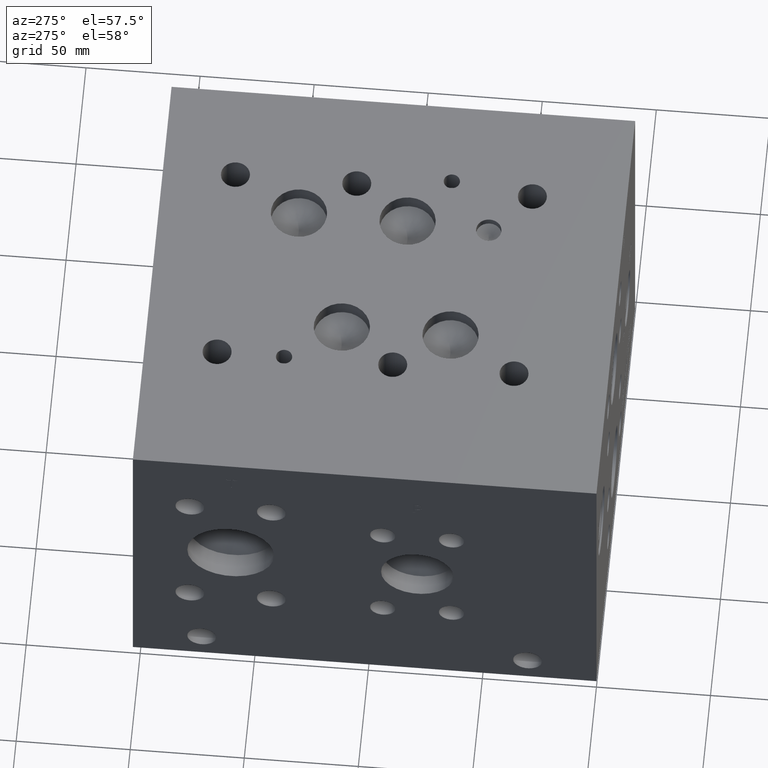
[diagram: clean part render]
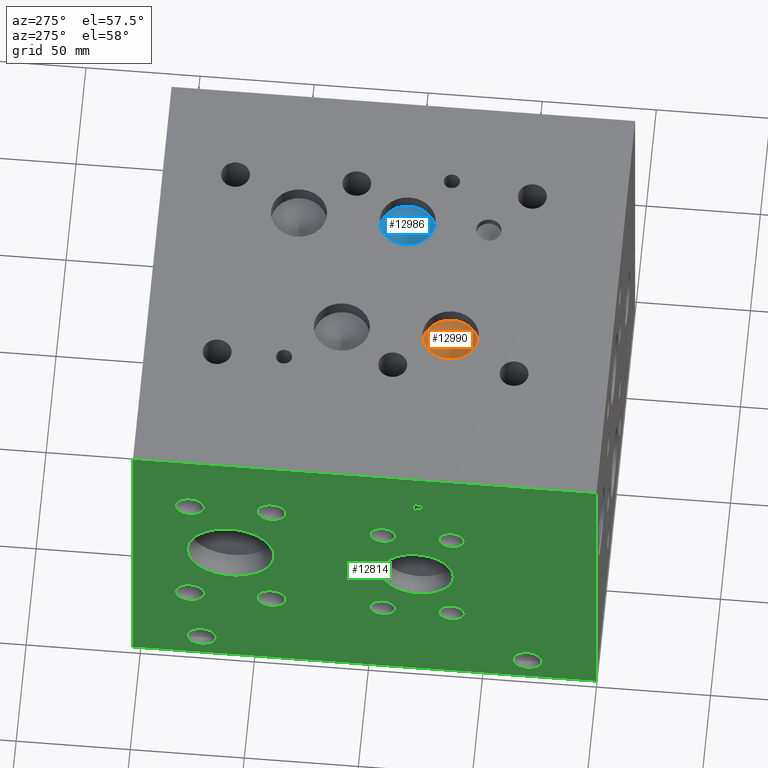
[diagram: same view with three faces highlighted in distinct colors, each labeled with its STEP entity id]
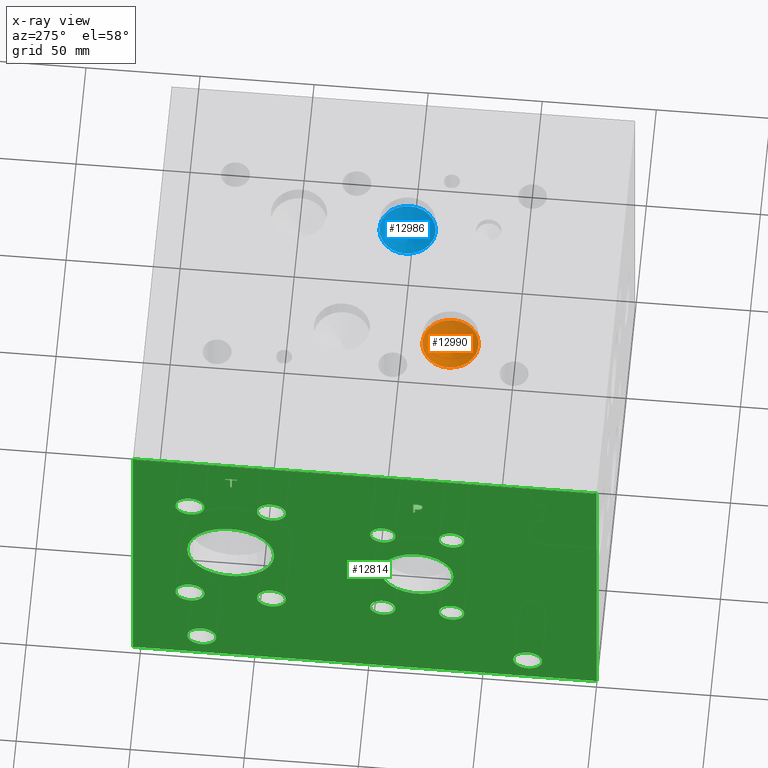
[diagram: x-ray of the same camera — body ghosted, the three highlighted faces saturated]
A machine part, auxiliary view with three faces highlighted in distinct colors.
The next image is the same camera in x-ray (body ghosted, the three faces saturated) — at least one of them is partly hidden behind the body in this view.
Their STEP definitions:

[orange] entity #12990 — the highlighted conical surface has half-angle 60 deg.
#63=CONICAL_SURFACE('',#13833,6.15315,1.0471975511966);
#467=CIRCLE('',#13834,12.3063);
#468=CIRCLE('',#13835,12.3063);
#1716=FACE_OUTER_BOUND('',#2504,.T.);
#2504=EDGE_LOOP('',(#11323,#11324,#11325,#11326));
#3694=LINE('',#22237,#4854);
#4854=VECTOR('',#16649,6.15315);
#6077=VERTEX_POINT('',#22233);
#6078=VERTEX_POINT('',#22234);
#6079=VERTEX_POINT('',#22236);
#7854=EDGE_CURVE('',#6077,#6078,#467,.T.);
#7855=EDGE_CURVE('',#6078,#6079,#3694,.T.);
#7856=EDGE_CURVE('',#6078,#6077,#468,.T.);
#11323=ORIENTED_EDGE('',*,*,#7854,.T.);
#11324=ORIENTED_EDGE('',*,*,#7855,.T.);
#11325=ORIENTED_EDGE('',*,*,#7855,.F.);
#11326=ORIENTED_EDGE('',*,*,#7856,.T.);
#12990=ADVANCED_FACE('',(#1716),#63,.F.);
#13833=AXIS2_PLACEMENT_3D('',#22232,#16645,#16646);
#13834=AXIS2_PLACEMENT_3D('',#22235,#16647,#16648);
#13835=AXIS2_PLACEMENT_3D('',#22238,#16650,#16651);
#16645=DIRECTION('center_axis',(0.,0.,1.));
#16646=DIRECTION('ref_axis',(1.,0.,0.));
#16647=DIRECTION('center_axis',(0.,0.,1.));
#16648=DIRECTION('ref_axis',(1.,0.,0.));
#16649=DIRECTION('',(0.866025403784439,1.06057523872491E-16,-0.5));
#16650=DIRECTION('center_axis',(0.,0.,1.));
#16651=DIRECTION('ref_axis',(1.,0.,0.));
#22232=CARTESIAN_POINT('Origin',(76.2,70.6374,141.742427191136));
#22233=CARTESIAN_POINT('',(88.5063,70.6374,145.29495));
#22234=CARTESIAN_POINT('',(63.8937,70.6374,145.29495));
#22235=CARTESIAN_POINT('Origin',(76.2,70.6374,145.29495));
#22236=CARTESIAN_POINT('',(76.2,70.6374,138.189904382272));
#22237=CARTESIAN_POINT('',(70.04685,70.6374,141.742427191136));
#22238=CARTESIAN_POINT('Origin',(76.2,70.6374,145.29495));

[blue] entity #12986 — the highlighted conical surface has half-angle 60 deg.
#61=CONICAL_SURFACE('',#13821,6.15315,1.0471975511966);
#459=CIRCLE('',#13822,12.3063);
#460=CIRCLE('',#13823,12.3063);
#1712=FACE_OUTER_BOUND('',#2500,.T.);
#2500=EDGE_LOOP('',(#11303,#11304,#11305,#11306));
#3690=LINE('',#22211,#4850);
#4850=VECTOR('',#16621,6.15315);
#6067=VERTEX_POINT('',#22207);
#6068=VERTEX_POINT('',#22208);
#6069=VERTEX_POINT('',#22210);
#7842=EDGE_CURVE('',#6067,#6068,#459,.T.);
#7843=EDGE_CURVE('',#6068,#6069,#3690,.T.);
#7844=EDGE_CURVE('',#6068,#6067,#460,.T.);
#11303=ORIENTED_EDGE('',*,*,#7842,.T.);
#11304=ORIENTED_EDGE('',*,*,#7843,.T.);
#11305=ORIENTED_EDGE('',*,*,#7843,.F.);
#11306=ORIENTED_EDGE('',*,*,#7844,.T.);
#12986=ADVANCED_FACE('',(#1712),#61,.F.);
#13821=AXIS2_PLACEMENT_3D('',#22206,#16617,#16618);
#13822=AXIS2_PLACEMENT_3D('',#22209,#16619,#16620);
#13823=AXIS2_PLACEMENT_3D('',#22212,#16622,#16623);
#16617=DIRECTION('center_axis',(0.,0.,1.));
#16618=DIRECTION('ref_axis',(1.,0.,0.));
#16619=DIRECTION('center_axis',(0.,0.,1.));
#16620=DIRECTION('ref_axis',(1.,0.,0.));
#16621=DIRECTION('',(0.866025403784439,1.06057523872491E-16,-0.5));
#16622=DIRECTION('center_axis',(0.,0.,1.));
#16623=DIRECTION('ref_axis',(1.,0.,0.));
#22206=CARTESIAN_POINT('Origin',(133.35,94.4626,141.742427191136));
#22207=CARTESIAN_POINT('',(145.6563,94.4626,145.29495));
#22208=CARTESIAN_POINT('',(121.0437,94.4626,145.29495));
#22209=CARTESIAN_POINT('Origin',(133.35,94.4626,145.29495));
#22210=CARTESIAN_POINT('',(133.35,94.4626,138.189904382272));
#22211=CARTESIAN_POINT('',(127.19685,94.4626,141.742427191136));
#22212=CARTESIAN_POINT('Origin',(133.35,94.4626,145.29495));

[green] entity #12814 — the highlighted planar face has unit normal (-1, 0, 0).
#217=CIRCLE('',#13408,19.05);
#218=CIRCLE('',#13409,19.05);
#219=CIRCLE('',#13410,6.35);
#220=CIRCLE('',#13411,6.35);
#221=CIRCLE('',#13412,6.35);
#222=CIRCLE('',#13413,6.35);
#223=CIRCLE('',#13414,6.35);
#224=CIRCLE('',#13415,6.35);
#225=CIRCLE('',#13416,6.35);
#226=CIRCLE('',#13417,6.35);
#227=CIRCLE('',#13418,15.875);
#228=CIRCLE('',#13419,15.875);
#229=CIRCLE('',#13420,5.5626);
#230=CIRCLE('',#13421,5.5626);
#231=CIRCLE('',#13422,5.5626);
#232=CIRCLE('',#13423,5.5626);
#233=CIRCLE('',#13424,5.5626);
#234=CIRCLE('',#13425,5.5626);
#235=CIRCLE('',#13426,5.5626);
#236=CIRCLE('',#13427,5.5626);
#237=CIRCLE('',#13428,6.35);
#238=CIRCLE('',#13429,6.35);
#239=CIRCLE('',#13430,6.35);
#240=CIRCLE('',#13431,6.35);
#588=FACE_BOUND('',#2280,.T.);
#589=FACE_BOUND('',#2281,.T.);
#590=FACE_BOUND('',#2282,.T.);
#591=FACE_BOUND('',#2283,.T.);
#592=FACE_BOUND('',#2284,.T.);
#593=FACE_BOUND('',#2285,.T.);
#594=FACE_BOUND('',#2286,.T.);
#595=FACE_BOUND('',#2287,.T.);
#596=FACE_BOUND('',#2288,.T.);
#597=FACE_BOUND('',#2289,.T.);
#598=FACE_BOUND('',#2290,.T.);
#599=FACE_BOUND('',#2291,.T.);
#600=FACE_BOUND('',#2292,.T.);
#601=FACE_BOUND('',#2293,.T.);
#931=B_SPLINE_CURVE_WITH_KNOTS('',2,(#21242,#21243,#21244,#21245),
 .UNSPECIFIED.,.F.,.F.,(3,1,3),(0.,1.,2.),.UNSPECIFIED.);
#933=B_SPLINE_CURVE_WITH_KNOTS('',2,(#21263,#21264,#21265,#21266),
 .UNSPECIFIED.,.F.,.F.,(3,1,3),(0.,1.,2.),.UNSPECIFIED.);
#935=B_SPLINE_CURVE_WITH_KNOTS('',2,(#21312,#21313,#21314,#21315),
 .UNSPECIFIED.,.F.,.F.,(3,1,3),(0.,1.,2.),.UNSPECIFIED.);
#937=B_SPLINE_CURVE_WITH_KNOTS('',2,(#21330,#21331,#21332,#21333),
 .UNSPECIFIED.,.F.,.F.,(3,1,3),(0.,1.,2.),.UNSPECIFIED.);
#1540=FACE_OUTER_BOUND('',#2279,.T.);
#2279=EDGE_LOOP('',(#10462,#10463,#10464,#10465));
#2280=EDGE_LOOP('',(#10466,#10467));
#2281=EDGE_LOOP('',(#10468,#10469));
#2282=EDGE_LOOP('',(#10470,#10471));
#2283=EDGE_LOOP('',(#10472,#10473));
#2284=EDGE_LOOP('',(#10474,#10475));
#2285=EDGE_LOOP('',(#10476,#10477));
#2286=EDGE_LOOP('',(#10478,#10479));
#2287=EDGE_LOOP('',(#10480,#10481));
#2288=EDGE_LOOP('',(#10482,#10483));
#2289=EDGE_LOOP('',(#10484,#10485));
#2290=EDGE_LOOP('',(#10486,#10487));
#2291=EDGE_LOOP('',(#10488,#10489));
#2292=EDGE_LOOP('',(#10490,#10491,#10492,#10493,#10494,#10495,#10496,#10497));
#2293=EDGE_LOOP('',(#10498,#10499,#10500,#10501,#10502,#10503,#10504,#10505,
#10506));
#2895=LINE('',#19049,#4055);
#3520=LINE('',#21275,#4680);
#3523=LINE('',#21281,#4683);
#3526=LINE('',#21287,#4686);
#3529=LINE('',#21293,#4689);
#3532=LINE('',#21299,#4692);
#3536=LINE('',#21341,#4696);
#3537=LINE('',#21343,#4697);
#3538=LINE('',#21344,#4698);
#3539=LINE('',#21395,#4699);
#3540=LINE('',#21397,#4700);
#3541=LINE('',#21399,#4701);
#3542=LINE('',#21401,#4702);
#3543=LINE('',#21403,#4703);
#3544=LINE('',#21405,#4704);
#3545=LINE('',#21407,#4705);
#3546=LINE('',#21408,#4706);
#4055=VECTOR('',#14448,10.);
#4680=VECTOR('',#15609,10.);
#4683=VECTOR('',#15614,10.);
#4686=VECTOR('',#15619,10.);
#4689=VECTOR('',#15624,10.);
#4692=VECTOR('',#15629,10.);
#4696=VECTOR('',#15637,10.);
#4697=VECTOR('',#15638,10.);
#4698=VECTOR('',#15639,10.);
#4699=VECTOR('',#15688,10.);
#4700=VECTOR('',#15689,10.);
#4701=VECTOR('',#15690,10.);
#4702=VECTOR('',#15691,10.);
#4703=VECTOR('',#15692,10.);
#4704=VECTOR('',#15693,10.);
#4705=VECTOR('',#15694,10.);
#4706=VECTOR('',#15695,10.);
#5220=VERTEX_POINT('',#19042);
#5223=VERTEX_POINT('',#19047);
#5750=VERTEX_POINT('',#21240);
#5751=VERTEX_POINT('',#21241);
#5754=VERTEX_POINT('',#21262);
#5756=VERTEX_POINT('',#21274);
#5758=VERTEX_POINT('',#21280);
#5760=VERTEX_POINT('',#21286);
#5762=VERTEX_POINT('',#21292);
#5764=VERTEX_POINT('',#21298);
#5766=VERTEX_POINT('',#21311);
#5768=VERTEX_POINT('',#21340);
#5769=VERTEX_POINT('',#21342);
#5770=VERTEX_POINT('',#21345);
#5771=VERTEX_POINT('',#21346);
#5772=VERTEX_POINT('',#21349);
#5773=VERTEX_POINT('',#21350);
#5774=VERTEX_POINT('',#21353);
#5775=VERTEX_POINT('',#21354);
#5776=VERTEX_POINT('',#21357);
#5777=VERTEX_POINT('',#21358);
#5778=VERTEX_POINT('',#21361);
#5779=VERTEX_POINT('',#21362);
#5780=VERTEX_POINT('',#21365);
#5781=VERTEX_POINT('',#21366);
#5782=VERTEX_POINT('',#21369);
#5783=VERTEX_POINT('',#21370);
#5784=VERTEX_POINT('',#21373);
#5785=VERTEX_POINT('',#21374);
#5786=VERTEX_POINT('',#21377);
#5787=VERTEX_POINT('',#21378);
#5788=VERTEX_POINT('',#21381);
#5789=VERTEX_POINT('',#21382);
#5790=VERTEX_POINT('',#21385);
#5791=VERTEX_POINT('',#21386);
#5792=VERTEX_POINT('',#21389);
#5793=VERTEX_POINT('',#21390);
#5794=VERTEX_POINT('',#21393);
#5795=VERTEX_POINT('',#21394);
#5796=VERTEX_POINT('',#21396);
#5797=VERTEX_POINT('',#21398);
#5798=VERTEX_POINT('',#21400);
#5799=VERTEX_POINT('',#21402);
#5800=VERTEX_POINT('',#21404);
#5801=VERTEX_POINT('',#21406);
#6653=EDGE_CURVE('',#5220,#5223,#2895,.T.);
#7419=EDGE_CURVE('',#5750,#5751,#931,.T.);
#7423=EDGE_CURVE('',#5754,#5750,#933,.T.);
#7426=EDGE_CURVE('',#5756,#5754,#3520,.T.);
#7429=EDGE_CURVE('',#5758,#5756,#3523,.T.);
#7432=EDGE_CURVE('',#5760,#5758,#3526,.T.);
#7435=EDGE_CURVE('',#5762,#5760,#3529,.T.);
#7438=EDGE_CURVE('',#5764,#5762,#3532,.T.);
#7441=EDGE_CURVE('',#5766,#5764,#935,.T.);
#7444=EDGE_CURVE('',#5751,#5766,#937,.T.);
#7446=EDGE_CURVE('',#5768,#5220,#3536,.T.);
#7447=EDGE_CURVE('',#5769,#5223,#3537,.T.);
#7448=EDGE_CURVE('',#5768,#5769,#3538,.T.);
#7449=EDGE_CURVE('',#5770,#5771,#217,.T.);
#7450=EDGE_CURVE('',#5771,#5770,#218,.T.);
#7451=EDGE_CURVE('',#5772,#5773,#219,.T.);
#7452=EDGE_CURVE('',#5773,#5772,#220,.T.);
#7453=EDGE_CURVE('',#5774,#5775,#221,.T.);
#7454=EDGE_CURVE('',#5775,#5774,#222,.T.);
#7455=EDGE_CURVE('',#5776,#5777,#223,.T.);
#7456=EDGE_CURVE('',#5777,#5776,#224,.T.);
#7457=EDGE_CURVE('',#5778,#5779,#225,.T.);
#7458=EDGE_CURVE('',#5779,#5778,#226,.T.);
#7459=EDGE_CURVE('',#5780,#5781,#227,.T.);
#7460=EDGE_CURVE('',#5781,#5780,#228,.T.);
#7461=EDGE_CURVE('',#5782,#5783,#229,.T.);
#7462=EDGE_CURVE('',#5783,#5782,#230,.T.);
#7463=EDGE_CURVE('',#5784,#5785,#231,.T.);
#7464=EDGE_CURVE('',#5785,#5784,#232,.T.);
#7465=EDGE_CURVE('',#5786,#5787,#233,.T.);
#7466=EDGE_CURVE('',#5787,#5786,#234,.T.);
#7467=EDGE_CURVE('',#5788,#5789,#235,.T.);
#7468=EDGE_CURVE('',#5789,#5788,#236,.T.);
#7469=EDGE_CURVE('',#5790,#5791,#237,.T.);
#7470=EDGE_CURVE('',#5791,#5790,#238,.T.);
#7471=EDGE_CURVE('',#5792,#5793,#239,.T.);
#7472=EDGE_CURVE('',#5793,#5792,#240,.T.);
#7473=EDGE_CURVE('',#5794,#5795,#3539,.T.);
#7474=EDGE_CURVE('',#5795,#5796,#3540,.T.);
#7475=EDGE_CURVE('',#5796,#5797,#3541,.T.);
#7476=EDGE_CURVE('',#5797,#5798,#3542,.T.);
#7477=EDGE_CURVE('',#5798,#5799,#3543,.T.);
#7478=EDGE_CURVE('',#5799,#5800,#3544,.T.);
#7479=EDGE_CURVE('',#5800,#5801,#3545,.T.);
#7480=EDGE_CURVE('',#5801,#5794,#3546,.T.);
#10462=ORIENTED_EDGE('',*,*,#7446,.T.);
#10463=ORIENTED_EDGE('',*,*,#6653,.T.);
#10464=ORIENTED_EDGE('',*,*,#7447,.F.);
#10465=ORIENTED_EDGE('',*,*,#7448,.F.);
#10466=ORIENTED_EDGE('',*,*,#7449,.T.);
#10467=ORIENTED_EDGE('',*,*,#7450,.T.);
#10468=ORIENTED_EDGE('',*,*,#7451,.T.);
#10469=ORIENTED_EDGE('',*,*,#7452,.T.);
#10470=ORIENTED_EDGE('',*,*,#7453,.T.);
#10471=ORIENTED_EDGE('',*,*,#7454,.T.);
#10472=ORIENTED_EDGE('',*,*,#7455,.T.);
#10473=ORIENTED_EDGE('',*,*,#7456,.T.);
#10474=ORIENTED_EDGE('',*,*,#7457,.T.);
#10475=ORIENTED_EDGE('',*,*,#7458,.T.);
#10476=ORIENTED_EDGE('',*,*,#7459,.T.);
#10477=ORIENTED_EDGE('',*,*,#7460,.T.);
#10478=ORIENTED_EDGE('',*,*,#7461,.T.);
#10479=ORIENTED_EDGE('',*,*,#7462,.T.);
#10480=ORIENTED_EDGE('',*,*,#7463,.T.);
#10481=ORIENTED_EDGE('',*,*,#7464,.T.);
#10482=ORIENTED_EDGE('',*,*,#7465,.T.);
#10483=ORIENTED_EDGE('',*,*,#7466,.T.);
#10484=ORIENTED_EDGE('',*,*,#7467,.T.);
#10485=ORIENTED_EDGE('',*,*,#7468,.T.);
#10486=ORIENTED_EDGE('',*,*,#7469,.T.);
#10487=ORIENTED_EDGE('',*,*,#7470,.T.);
#10488=ORIENTED_EDGE('',*,*,#7471,.T.);
#10489=ORIENTED_EDGE('',*,*,#7472,.T.);
#10490=ORIENTED_EDGE('',*,*,#7473,.T.);
#10491=ORIENTED_EDGE('',*,*,#7474,.T.);
#10492=ORIENTED_EDGE('',*,*,#7475,.T.);
#10493=ORIENTED_EDGE('',*,*,#7476,.T.);
#10494=ORIENTED_EDGE('',*,*,#7477,.T.);
#10495=ORIENTED_EDGE('',*,*,#7478,.T.);
#10496=ORIENTED_EDGE('',*,*,#7479,.T.);
#10497=ORIENTED_EDGE('',*,*,#7480,.T.);
#10498=ORIENTED_EDGE('',*,*,#7419,.T.);
#10499=ORIENTED_EDGE('',*,*,#7444,.T.);
#10500=ORIENTED_EDGE('',*,*,#7441,.T.);
#10501=ORIENTED_EDGE('',*,*,#7438,.T.);
#10502=ORIENTED_EDGE('',*,*,#7435,.T.);
#10503=ORIENTED_EDGE('',*,*,#7432,.T.);
#10504=ORIENTED_EDGE('',*,*,#7429,.T.);
#10505=ORIENTED_EDGE('',*,*,#7426,.T.);
#10506=ORIENTED_EDGE('',*,*,#7423,.T.);
#11841=PLANE('',#13407);
#12814=ADVANCED_FACE('',(#1540,#588,#589,#590,#591,#592,#593,#594,#595,
#596,#597,#598,#599,#600,#601),#11841,.T.);
#13407=AXIS2_PLACEMENT_3D('',#21339,#15635,#15636);
#13408=AXIS2_PLACEMENT_3D('',#21347,#15640,#15641);
#13409=AXIS2_PLACEMENT_3D('',#21348,#15642,#15643);
#13410=AXIS2_PLACEMENT_3D('',#21351,#15644,#15645);
#13411=AXIS2_PLACEMENT_3D('',#21352,#15646,#15647);
#13412=AXIS2_PLACEMENT_3D('',#21355,#15648,#15649);
#13413=AXIS2_PLACEMENT_3D('',#21356,#15650,#15651);
#13414=AXIS2_PLACEMENT_3D('',#21359,#15652,#15653);
#13415=AXIS2_PLACEMENT_3D('',#21360,#15654,#15655);
#13416=AXIS2_PLACEMENT_3D('',#21363,#15656,#15657);
#13417=AXIS2_PLACEMENT_3D('',#21364,#15658,#15659);
#13418=AXIS2_PLACEMENT_3D('',#21367,#15660,#15661);
#13419=AXIS2_PLACEMENT_3D('',#21368,#15662,#15663);
#13420=AXIS2_PLACEMENT_3D('',#21371,#15664,#15665);
#13421=AXIS2_PLACEMENT_3D('',#21372,#15666,#15667);
#13422=AXIS2_PLACEMENT_3D('',#21375,#15668,#15669);
#13423=AXIS2_PLACEMENT_3D('',#21376,#15670,#15671);
#13424=AXIS2_PLACEMENT_3D('',#21379,#15672,#15673);
#13425=AXIS2_PLACEMENT_3D('',#21380,#15674,#15675);
#13426=AXIS2_PLACEMENT_3D('',#21383,#15676,#15677);
#13427=AXIS2_PLACEMENT_3D('',#21384,#15678,#15679);
#13428=AXIS2_PLACEMENT_3D('',#21387,#15680,#15681);
#13429=AXIS2_PLACEMENT_3D('',#21388,#15682,#15683);
#13430=AXIS2_PLACEMENT_3D('',#21391,#15684,#15685);
#13431=AXIS2_PLACEMENT_3D('',#21392,#15686,#15687);
#14448=DIRECTION('',(0.,0.,1.));
#15609=DIRECTION('',(0.,-1.,-1.11355060845355E-14));
#15614=DIRECTION('',(0.,-2.79741238752512E-15,1.));
#15619=DIRECTION('',(0.,1.,0.));
#15624=DIRECTION('',(0.,0.,-1.));
#15629=DIRECTION('',(0.,1.,0.));
#15635=DIRECTION('center_axis',(-1.,0.,0.));
#15636=DIRECTION('ref_axis',(0.,-1.,0.));
#15637=DIRECTION('',(0.,-1.,0.));
#15638=DIRECTION('',(0.,-1.,0.));
#15639=DIRECTION('',(0.,0.,1.));
#15640=DIRECTION('center_axis',(1.,0.,0.));
#15641=DIRECTION('ref_axis',(0.,1.,0.));
#15642=DIRECTION('center_axis',(1.,0.,0.));
#15643=DIRECTION('ref_axis',(0.,1.,0.));
#15644=DIRECTION('center_axis',(1.,0.,0.));
#15645=DIRECTION('ref_axis',(0.,1.,0.));
#15646=DIRECTION('center_axis',(1.,0.,0.));
#15647=DIRECTION('ref_axis',(0.,1.,0.));
#15648=DIRECTION('center_axis',(1.,0.,0.));
#15649=DIRECTION('ref_axis',(0.,1.,0.));
#15650=DIRECTION('center_axis',(1.,0.,0.));
#15651=DIRECTION('ref_axis',(0.,1.,0.));
#15652=DIRECTION('center_axis',(1.,0.,0.));
#15653=DIRECTION('ref_axis',(0.,1.,0.));
#15654=DIRECTION('center_axis',(1.,0.,0.));
#15655=DIRECTION('ref_axis',(0.,1.,0.));
#15656=DIRECTION('center_axis',(1.,0.,0.));
#15657=DIRECTION('ref_axis',(0.,1.,0.));
#15658=DIRECTION('center_axis',(1.,0.,0.));
#15659=DIRECTION('ref_axis',(0.,1.,0.));
#15660=DIRECTION('center_axis',(1.,0.,0.));
#15661=DIRECTION('ref_axis',(0.,1.,0.));
#15662=DIRECTION('center_axis',(1.,0.,0.));
#15663=DIRECTION('ref_axis',(0.,1.,0.));
#15664=DIRECTION('center_axis',(1.,0.,0.));
#15665=DIRECTION('ref_axis',(0.,1.,0.));
#15666=DIRECTION('center_axis',(1.,0.,0.));
#15667=DIRECTION('ref_axis',(0.,1.,0.));
#15668=DIRECTION('center_axis',(1.,0.,0.));
#15669=DIRECTION('ref_axis',(0.,1.,0.));
#15670=DIRECTION('center_axis',(1.,0.,0.));
#15671=DIRECTION('ref_axis',(0.,1.,0.));
#15672=DIRECTION('center_axis',(1.,0.,0.));
#15673=DIRECTION('ref_axis',(0.,1.,0.));
#15674=DIRECTION('center_axis',(1.,0.,0.));
#15675=DIRECTION('ref_axis',(0.,1.,0.));
#15676=DIRECTION('center_axis',(1.,0.,0.));
#15677=DIRECTION('ref_axis',(0.,1.,0.));
#15678=DIRECTION('center_axis',(1.,0.,0.));
#15679=DIRECTION('ref_axis',(0.,1.,0.));
#15680=DIRECTION('center_axis',(1.,0.,0.));
#15681=DIRECTION('ref_axis',(0.,1.,0.));
#15682=DIRECTION('center_axis',(1.,0.,0.));
#15683=DIRECTION('ref_axis',(0.,1.,0.));
#15684=DIRECTION('center_axis',(1.,0.,0.));
#15685=DIRECTION('ref_axis',(0.,1.,0.));
#15686=DIRECTION('center_axis',(1.,0.,0.));
#15687=DIRECTION('ref_axis',(0.,1.,0.));
#15688=DIRECTION('',(0.,1.,0.));
#15689=DIRECTION('',(0.,0.,1.));
#15690=DIRECTION('',(0.,1.,8.33818088455555E-15));
#15691=DIRECTION('',(0.,0.,1.));
#15692=DIRECTION('',(0.,-1.,-3.47984565141733E-15));
#15693=DIRECTION('',(0.,0.,-1.));
#15694=DIRECTION('',(0.,1.,8.33818088455555E-15));
#15695=DIRECTION('',(0.,0.,-1.));
#19042=CARTESIAN_POINT('',(0.,0.,0.));
#19047=CARTESIAN_POINT('',(0.,0.,152.4));
#19049=CARTESIAN_POINT('',(0.,0.,0.));
#21240=CARTESIAN_POINT('',(0.,77.0619327976406,132.160018143971));
#21241=CARTESIAN_POINT('',(0.,76.305490345468,130.641987372604));
#21242=CARTESIAN_POINT('Ctrl Pts',(0.,77.0619327976406,132.160018143971));
#21243=CARTESIAN_POINT('Ctrl Pts',(0.,76.7068679731514,131.918162393956));
#21244=CARTESIAN_POINT('Ctrl Pts',(0.,76.305490345468,131.172011675827));
#21245=CARTESIAN_POINT('Ctrl Pts',(0.,76.305490345468,130.641987372604));
#21262=CARTESIAN_POINT('',(0.,78.7240478456117,132.556249904633));
#21263=CARTESIAN_POINT('Ctrl Pts',(0.,78.7240478456117,132.556249904633));
#21264=CARTESIAN_POINT('Ctrl Pts',(0.,78.1580024732376,132.556249904633));
#21265=CARTESIAN_POINT('Ctrl Pts',(0.,77.3655389519139,132.370998691856));
#21266=CARTESIAN_POINT('Ctrl Pts',(0.,77.0619327976406,132.160018143971));
#21274=CARTESIAN_POINT('',(0.,80.3192666223022,132.556249904633));
#21275=CARTESIAN_POINT('',(0.,141.75963331115,132.556249904633));
#21280=CARTESIAN_POINT('',(0.,80.3192666223022,126.20625));
#21281=CARTESIAN_POINT('',(0.,80.3192666223024,63.1031249999998));
#21286=CARTESIAN_POINT('',(0.,79.4753444307627,126.20625));
#21287=CARTESIAN_POINT('',(0.,141.337672215381,126.20625));
#21292=CARTESIAN_POINT('',(0.,79.4753444307627,128.573348829928));
#21293=CARTESIAN_POINT('',(0.,79.4753444307627,64.2866744149639));
#21298=CARTESIAN_POINT('',(0.,78.7600689147628,128.573348829928));
#21299=CARTESIAN_POINT('',(0.,140.980034457381,128.573348829928));
#21311=CARTESIAN_POINT('',(0.,76.8612439837989,129.23201980869));
#21312=CARTESIAN_POINT('Ctrl Pts',(0.,76.8612439837989,129.23201980869));
#21313=CARTESIAN_POINT('Ctrl Pts',(0.,77.1905794731802,128.907830186331));
#21314=CARTESIAN_POINT('Ctrl Pts',(0.,78.0808144679139,128.573348829928));
#21315=CARTESIAN_POINT('Ctrl Pts',(0.,78.7600689147628,128.573348829928));
#21330=CARTESIAN_POINT('Ctrl Pts',(0.,76.305490345468,130.641987372604));
#21331=CARTESIAN_POINT('Ctrl Pts',(0.,76.305490345468,130.230318010877));
#21332=CARTESIAN_POINT('Ctrl Pts',(0.,76.5988047656982,129.48931315977));
#21333=CARTESIAN_POINT('Ctrl Pts',(0.,76.8612439837989,129.23201980869));
#21339=CARTESIAN_POINT('Origin',(0.,203.2,0.));
#21340=CARTESIAN_POINT('',(0.,203.2,0.));
#21341=CARTESIAN_POINT('',(0.,203.2,0.));
#21342=CARTESIAN_POINT('',(0.,203.2,152.4));
#21343=CARTESIAN_POINT('',(0.,203.2,152.4));
#21344=CARTESIAN_POINT('',(0.,203.2,0.));
#21345=CARTESIAN_POINT('',(0.,179.4002,82.55));
#21346=CARTESIAN_POINT('',(0.,141.3002,82.55));
#21347=CARTESIAN_POINT('Origin',(0.,160.3502,82.55));
#21348=CARTESIAN_POINT('Origin',(0.,160.3502,82.55));
#21349=CARTESIAN_POINT('',(0.,148.844,117.475));
#21350=CARTESIAN_POINT('',(2.22044604925031E-15,136.144,117.475));
#21351=CARTESIAN_POINT('Origin',(0.,142.494,117.475));
#21352=CARTESIAN_POINT('Origin',(0.,142.494,117.475));
#21353=CARTESIAN_POINT('',(0.,184.5564,117.475));
#21354=CARTESIAN_POINT('',(2.22044604925031E-15,171.8564,117.475));
#21355=CARTESIAN_POINT('Origin',(0.,178.2064,117.475));
#21356=CARTESIAN_POINT('Origin',(0.,178.2064,117.475));
#21357=CARTESIAN_POINT('',(0.,148.844,47.625));
#21358=CARTESIAN_POINT('',(2.22044604925031E-15,136.144,47.625));
#21359=CARTESIAN_POINT('Origin',(0.,142.494,47.625));
#21360=CARTESIAN_POINT('Origin',(0.,142.494,47.625));
#21361=CARTESIAN_POINT('',(0.,184.5564,47.625));
#21362=CARTESIAN_POINT('',(2.22044604925031E-15,171.8564,47.625));
#21363=CARTESIAN_POINT('Origin',(0.,178.2064,47.625));
#21364=CARTESIAN_POINT('Origin',(0.,178.2064,47.625));
#21365=CARTESIAN_POINT('',(0.,94.4626,76.2));
#21366=CARTESIAN_POINT('',(0.,62.7126,76.2));
#21367=CARTESIAN_POINT('Origin',(0.,78.5876,76.2));
#21368=CARTESIAN_POINT('Origin',(0.,78.5876,76.2));
#21369=CARTESIAN_POINT('',(0.,99.2378,46.8376));
#21370=CARTESIAN_POINT('',(0.,88.1126,46.8376));
#21371=CARTESIAN_POINT('Origin',(0.,93.6752,46.8376));
#21372=CARTESIAN_POINT('Origin',(0.,93.6752,46.8376));
#21373=CARTESIAN_POINT('',(0.,69.06768,105.5624));
#21374=CARTESIAN_POINT('',(0.,57.94248,105.5624));
#21375=CARTESIAN_POINT('Origin',(0.,63.50508,105.5624));
#21376=CARTESIAN_POINT('Origin',(0.,63.50508,105.5624));
#21377=CARTESIAN_POINT('',(0.,99.2378,105.56748));
#21378=CARTESIAN_POINT('',(0.,88.1126,105.56748));
#21379=CARTESIAN_POINT('Origin',(0.,93.6752,105.56748));
#21380=CARTESIAN_POINT('Origin',(0.,93.6752,105.56748));
#21381=CARTESIAN_POINT('',(0.,69.06768,46.83252));
#21382=CARTESIAN_POINT('',(0.,57.94248,46.83252));
#21383=CARTESIAN_POINT('Origin',(0.,63.50508,46.83252));
#21384=CARTESIAN_POINT('Origin',(0.,63.50508,46.83252));
#21385=CARTESIAN_POINT('',(0.,179.3748,12.7));
#21386=CARTESIAN_POINT('',(0.,166.6748,12.7));
#21387=CARTESIAN_POINT('Origin',(0.,173.0248,12.7));
#21388=CARTESIAN_POINT('Origin',(0.,173.0248,12.7));
#21389=CARTESIAN_POINT('',(0.,36.5252,12.7));
#21390=CARTESIAN_POINT('',(0.,23.8252,12.7));
#21391=CARTESIAN_POINT('Origin',(0.,30.1752,12.7));
#21392=CARTESIAN_POINT('Origin',(0.,30.1752,12.7));
#21393=CARTESIAN_POINT('',(0.,159.749584728547,135.73125));
#21394=CARTESIAN_POINT('',(0.,160.593506920087,135.73125));
#21395=CARTESIAN_POINT('',(0.,181.474792364274,135.73125));
#21396=CARTESIAN_POINT('',(0.,160.593506920087,141.329953319482));
#21397=CARTESIAN_POINT('',(0.,160.593506920087,67.865625));
#21398=CARTESIAN_POINT('',(0.,162.723895867022,141.329953319482));
#21399=CARTESIAN_POINT('',(0.,181.896753460043,141.329953319482));
#21400=CARTESIAN_POINT('',(0.,162.723895867022,142.081249904633));
#21401=CARTESIAN_POINT('',(0.,162.723895867022,70.6649766597408));
#21402=CARTESIAN_POINT('',(0.,157.619195781612,142.081249904633));
#21403=CARTESIAN_POINT('',(0.,182.961947933511,142.081249904633));
#21404=CARTESIAN_POINT('',(0.,157.619195781612,141.329953319482));
#21405=CARTESIAN_POINT('',(0.,157.619195781612,71.0406249523163));
#21406=CARTESIAN_POINT('',(0.,159.749584728547,141.329953319482));
#21407=CARTESIAN_POINT('',(0.,180.409597890805,141.329953319482));
#21408=CARTESIAN_POINT('',(0.,159.749584728547,70.6649766597408));